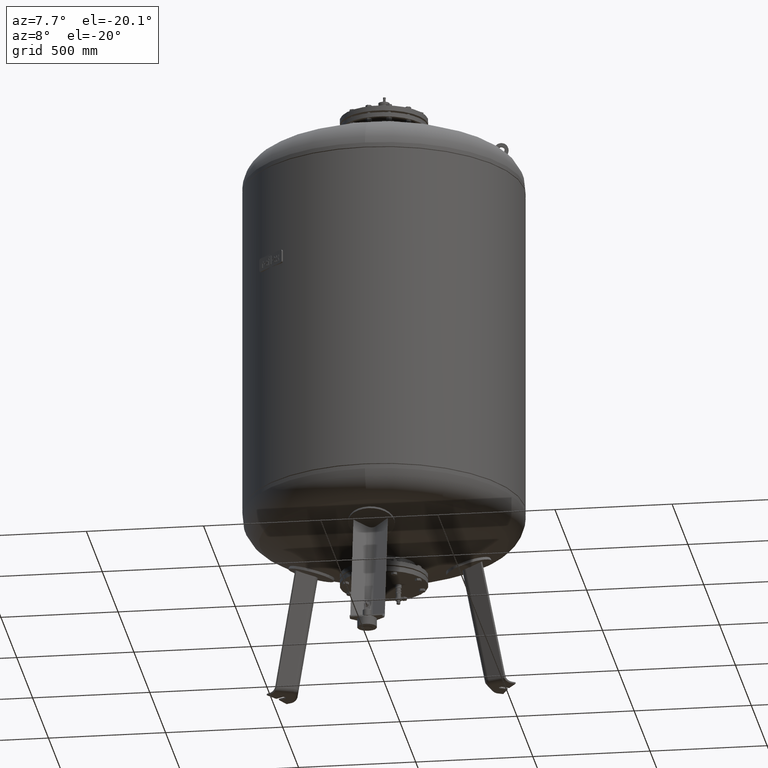
[diagram: clean part render]
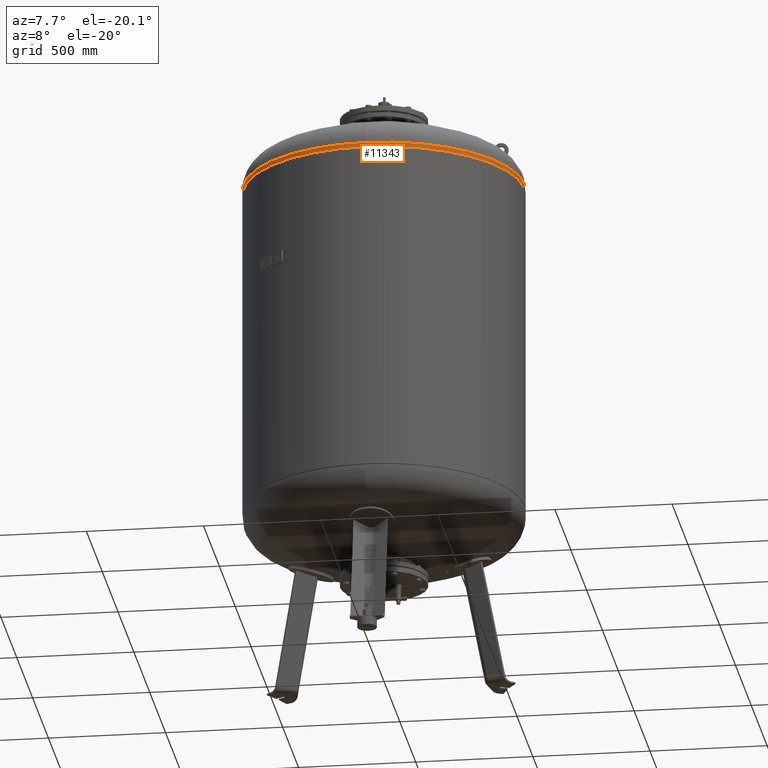
[diagram: same view with one face highlighted and labeled with its STEP entity id]
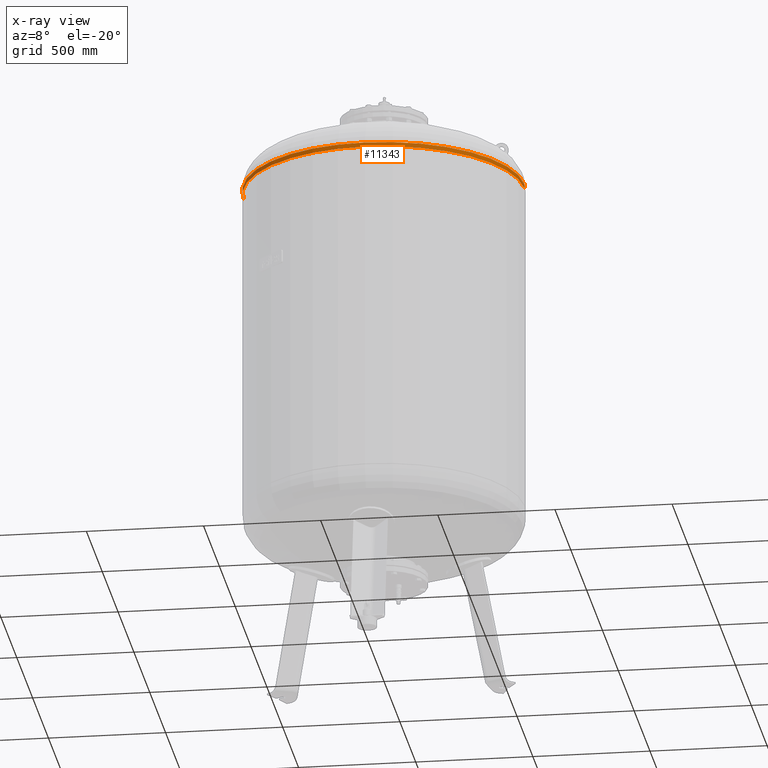
[diagram: x-ray of the same camera — body ghosted, the highlighted face saturated]
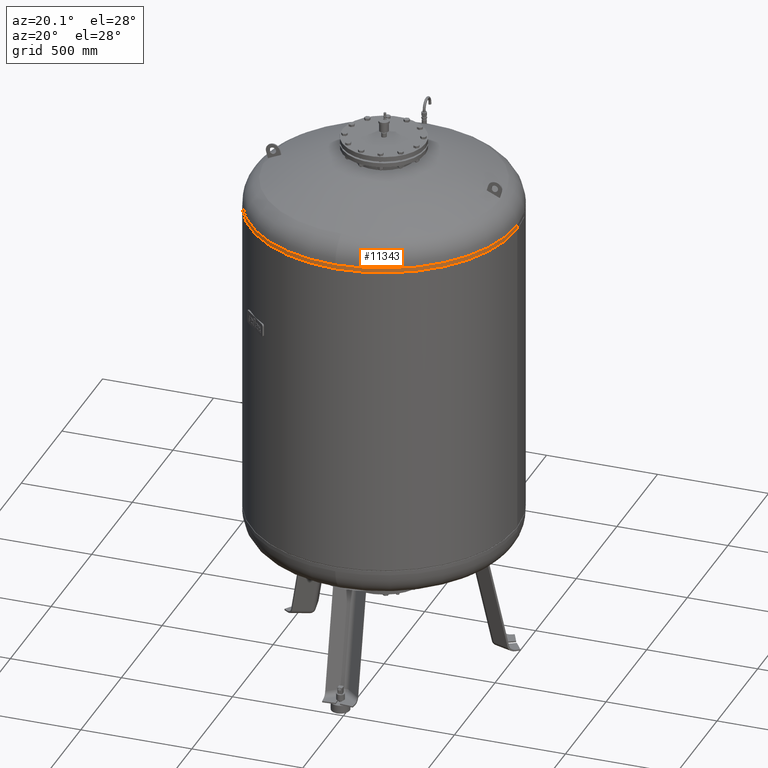
[diagram: same view with one face highlighted and labeled with its STEP entity id]
A machine part, auxiliary view. The second image highlights one B-rep face of the part: STEP entity #11343.
The next image is the same camera in x-ray: the body ghosted, the highlighted face saturated — about 0% of this face is hidden behind the body in this view.
A second angle (auxiliary view) of the same face is appended — the face is thin or edge-on in the first view.
In plain terms, the highlighted cylindrical surface (partial cylindrical patch) has radius 600 mm, axis along (0, -0, -1).
Its self-contained STEP definition (entity closure, byte-faithful):
#10544=CARTESIAN_POINT('',(600.000000000000110,-4.684274E-014,2145.0));
#10545=VERTEX_POINT('',#10544);
#10546=CARTESIAN_POINT('',(600.0,-4.336858E-014,2163.912457433727900));
#10547=VERTEX_POINT('',#10546);
#10548=CARTESIAN_POINT('',(600.000000000000110,-4.684274E-014,2145.0));
#10549=DIRECTION('',(0.0,0.0,1.0));
#10550=VECTOR('',#10549,18.912457433727923);
#10551=LINE('',#10548,#10550);
#10552=EDGE_CURVE('',#10545,#10547,#10551,.T.);
#10554=CARTESIAN_POINT('',(-599.999999999999890,2.663364E-014,2145.0));
#10555=VERTEX_POINT('',#10554);
#10563=CARTESIAN_POINT('',(-599.999999999999890,3.010780E-014,2163.912457433727500));
#10564=VERTEX_POINT('',#10563);
#10565=CARTESIAN_POINT('',(-599.999999999999890,2.663364E-014,2145.0));
#10566=DIRECTION('',(0.0,0.0,1.0));
#10567=VECTOR('',#10566,18.912457433727468);
#10568=LINE('',#10565,#10567);
#10569=EDGE_CURVE('',#10555,#10564,#10568,.T.);
#10595=CARTESIAN_POINT('',(4.214189E-014,-600.0,2163.912457433727500));
#10596=VERTEX_POINT('',#10595);
#10606=CARTESIAN_POINT('',(6.604942E-015,-4.336858E-014,2163.912457433727500));
#10607=DIRECTION('',(0.0,0.0,-1.0));
#10608=DIRECTION('',(1.0,0.0,0.0));
#10609=AXIS2_PLACEMENT_3D('',#10606,#10607,#10608);
#10610=CIRCLE('',#10609,600.0);
#10611=EDGE_CURVE('',#10547,#10596,#10610,.T.);
#11315=CARTESIAN_POINT('',(6.604942E-015,-4.336858E-014,2163.912457433727500));
#11316=DIRECTION('',(0.0,0.0,-1.0));
#11317=DIRECTION('',(1.0,0.0,0.0));
#11318=AXIS2_PLACEMENT_3D('',#11315,#11316,#11317);
#11319=CIRCLE('',#11318,600.0);
#11320=EDGE_CURVE('',#10596,#10564,#11319,.T.);
#11325=CARTESIAN_POINT('',(6.869496E-015,-4.510566E-014,2154.456228716863700));
#11326=DIRECTION('',(2.797667E-017,-1.836970E-016,-1.0));
#11327=DIRECTION('',(1.0,0.0,0.0));
#11328=AXIS2_PLACEMENT_3D('',#11325,#11326,#11327);
#11329=CYLINDRICAL_SURFACE('',#11328,599.999999999999890);
#11330=ORIENTED_EDGE('',*,*,#10552,.T.);
#11331=ORIENTED_EDGE('',*,*,#10611,.T.);
#11332=ORIENTED_EDGE('',*,*,#11320,.T.);
#11333=ORIENTED_EDGE('',*,*,#10569,.F.);
#11334=CARTESIAN_POINT('',(7.134050E-015,-4.684274E-014,2145.0));
#11335=DIRECTION('',(0.0,0.0,-1.0));
#11336=DIRECTION('',(1.0,0.0,0.0));
#11337=AXIS2_PLACEMENT_3D('',#11334,#11335,#11336);
#11338=CIRCLE('',#11337,600.0);
#11339=EDGE_CURVE('',#10545,#10555,#11338,.T.);
#11340=ORIENTED_EDGE('',*,*,#11339,.F.);
#11341=EDGE_LOOP('',(#11330,#11331,#11332,#11333,#11340));
#11342=FACE_OUTER_BOUND('',#11341,.T.);
#11343=ADVANCED_FACE('',(#11342),#11329,.T.);